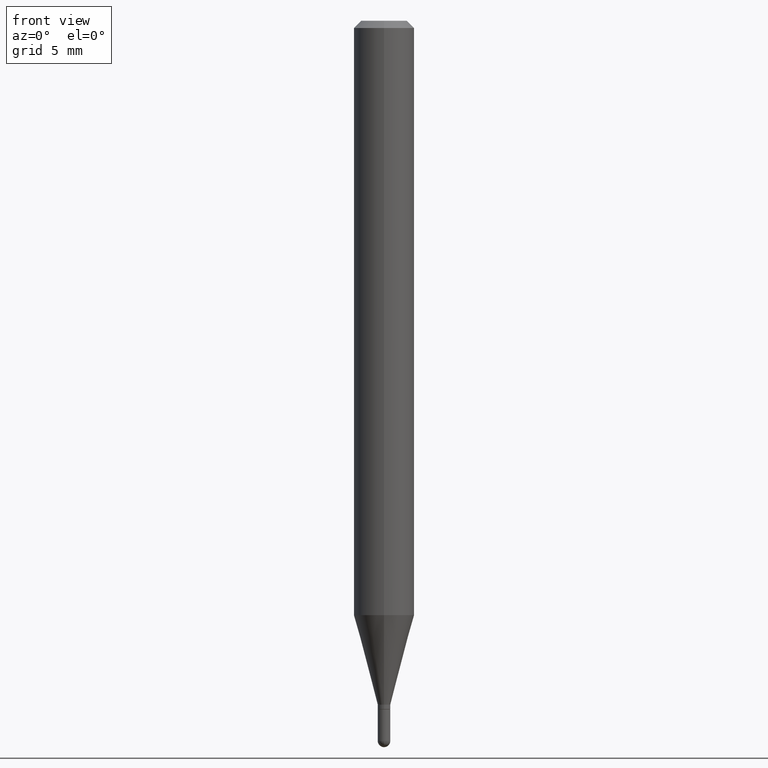
[diagram: clean part render]
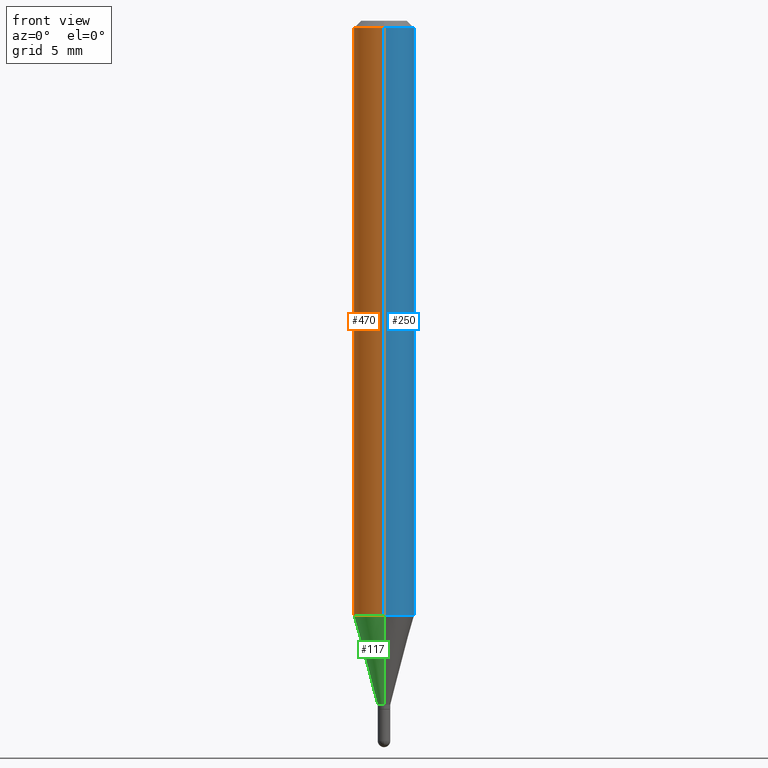
[diagram: same view with three faces highlighted in distinct colors, each labeled with its STEP entity id]
A machine part, front view with three faces highlighted in distinct colors.
Their STEP definitions:

[orange] entity #470 — the highlighted cylindrical surface (edge-blend (fillet) strip) has radius 1.5875 mm, axis along (-0, 0, 1).
#3 = AXIS2_PLACEMENT_3D ( 'NONE', #65, #495, #218 ) ;
#17 = VECTOR ( 'NONE', #256, 39.37007874015748143 ) ;
#22 = EDGE_CURVE ( 'NONE', #261, #393, #494, .T. ) ;
#30 = ORIENTED_EDGE ( 'NONE', *, *, #127, .T. ) ;
#37 = VERTEX_POINT ( 'NONE', #298 ) ;
#41 = ORIENTED_EDGE ( 'NONE', *, *, #485, .T. ) ;
#65 = CARTESIAN_POINT ( 'NONE',  ( 3.668212137666738049E-31, -5.237209222303456636E-17, -0.01500000000000000812 ) ) ;
#68 = CARTESIAN_POINT ( 'NONE',  ( 4.440892098500928887E-16, 0.06249999999999995837, -0.01500000000000022669 ) ) ;
#74 = DIRECTION ( 'NONE',  ( -6.982962677686265922E-15, -1.000000000000000000, 3.491472814868968428E-15 ) ) ;
#114 = ORIENTED_EDGE ( 'NONE', *, *, #22, .F. ) ;
#127 = EDGE_CURVE ( 'NONE', #261, #319, #409, .T. ) ;
#139 = CARTESIAN_POINT ( 'NONE',  ( 4.440892098500625669E-16, 0.06250000000000000000, -2.182170509293105267E-16 ) ) ;
#166 = VECTOR ( 'NONE', #277, 39.37007874015748143 ) ;
#182 = FACE_OUTER_BOUND ( 'NONE', #468, .T. ) ;
#218 = DIRECTION ( 'NONE',  ( -6.982962677686265922E-15, -1.000000000000000000, 3.483106191921935554E-15 ) ) ;
#223 = CIRCLE ( 'NONE', #3, 0.06250000000000000000 ) ;
#230 = CARTESIAN_POINT ( 'NONE',  ( -4.364351673553916201E-16, -0.06250000000000000000, 2.182170509293105267E-16 ) ) ;
#256 = DIRECTION ( 'NONE',  ( -2.445474758444491028E-29, 3.491472814868968822E-15, 1.000000000000000000 ) ) ;
#261 = VERTEX_POINT ( 'NONE', #374 ) ;
#277 = DIRECTION ( 'NONE',  ( -2.445474758444491028E-29, 3.491472814868968822E-15, 1.000000000000000000 ) ) ;
#298 = CARTESIAN_POINT ( 'NONE',  ( -4.364351673553912750E-16, -0.06250000000000005551, -0.01499999999999979128 ) ) ;
#319 = VERTEX_POINT ( 'NONE', #333 ) ;
#333 = CARTESIAN_POINT ( 'NONE',  ( -4.364351673553616434E-16, -0.06250000000000428824, -1.227263485025340772 ) ) ;
#345 = DIRECTION ( 'NONE',  ( -2.445474758444490748E-29, 3.491472814868968822E-15, 1.000000000000000000 ) ) ;
#362 = ORIENTED_EDGE ( 'NONE', *, *, #504, .F. ) ;
#364 = CARTESIAN_POINT ( 'NONE',  ( 3.001241874590089611E-29, -4.284957094647328536E-15, -1.227263485025340994 ) ) ;
#374 = CARTESIAN_POINT ( 'NONE',  ( 4.440892098500924943E-16, 0.06249999999999571176, -1.227263485025341216 ) ) ;
#388 = AXIS2_PLACEMENT_3D ( 'NONE', #389, #345, #74 ) ;
#389 = CARTESIAN_POINT ( 'NONE',  ( 0.000000000000000000, 0.000000000000000000, 0.000000000000000000 ) ) ;
#393 = VERTEX_POINT ( 'NONE', #68 ) ;
#396 = DIRECTION ( 'NONE',  ( -6.982962677686265922E-15, -1.000000000000000000, 4.370956789862821150E-15 ) ) ;
#409 = CIRCLE ( 'NONE', #466, 0.06250000000000000000 ) ;
#435 = CYLINDRICAL_SURFACE ( 'NONE', #388, 0.06250000000000000000 ) ;
#466 = AXIS2_PLACEMENT_3D ( 'NONE', #364, #472, #396 ) ;
#468 = EDGE_LOOP ( 'NONE', ( #114, #30, #41, #362 ) ) ;
#470 = ADVANCED_FACE ( 'NONE', ( #182 ), #435, .T. ) ;
#472 = DIRECTION ( 'NONE',  ( -2.445474758444490748E-29, 3.491472814868968822E-15, 1.000000000000000000 ) ) ;
#485 = EDGE_CURVE ( 'NONE', #319, #37, #497, .T. ) ;
#494 = LINE ( 'NONE', #139, #17 ) ;
#495 = DIRECTION ( 'NONE',  ( -2.445474758444490748E-29, 3.491472814868968822E-15, 1.000000000000000000 ) ) ;
#497 = LINE ( 'NONE', #230, #166 ) ;
#504 = EDGE_CURVE ( 'NONE', #393, #37, #223, .T. ) ;

[blue] entity #250 — the highlighted cylindrical surface (edge-blend (fillet) strip) has radius 1.5875 mm, axis along (-0, 0, 1).
#6 = EDGE_CURVE ( 'NONE', #319, #261, #415, .T. ) ;
#12 = CARTESIAN_POINT ( 'NONE',  ( 3.001241874590089611E-29, -4.284957094647328536E-15, -1.227263485025340994 ) ) ;
#17 = VECTOR ( 'NONE', #256, 39.37007874015748143 ) ;
#22 = EDGE_CURVE ( 'NONE', #261, #393, #494, .T. ) ;
#29 = CARTESIAN_POINT ( 'NONE',  ( 3.668212137666738049E-31, -5.237209222303456636E-17, -0.01500000000000000812 ) ) ;
#37 = VERTEX_POINT ( 'NONE', #298 ) ;
#43 = ORIENTED_EDGE ( 'NONE', *, *, #6, .T. ) ;
#68 = CARTESIAN_POINT ( 'NONE',  ( 4.440892098500928887E-16, 0.06249999999999995837, -0.01500000000000022669 ) ) ;
#76 = ORIENTED_EDGE ( 'NONE', *, *, #485, .F. ) ;
#80 = ORIENTED_EDGE ( 'NONE', *, *, #140, .F. ) ;
#134 = CARTESIAN_POINT ( 'NONE',  ( 0.000000000000000000, 0.000000000000000000, 0.000000000000000000 ) ) ;
#139 = CARTESIAN_POINT ( 'NONE',  ( 4.440892098500625669E-16, 0.06250000000000000000, -2.182170509293105267E-16 ) ) ;
#140 = EDGE_CURVE ( 'NONE', #37, #393, #450, .T. ) ;
#166 = VECTOR ( 'NONE', #277, 39.37007874015748143 ) ;
#173 = DIRECTION ( 'NONE',  ( -2.445474758444490748E-29, 3.491472814868968822E-15, 1.000000000000000000 ) ) ;
#176 = DIRECTION ( 'NONE',  ( -6.982962677686265922E-15, -1.000000000000000000, 4.370956789862821150E-15 ) ) ;
#192 = AXIS2_PLACEMENT_3D ( 'NONE', #12, #454, #176 ) ;
#212 = CYLINDRICAL_SURFACE ( 'NONE', #442, 0.06250000000000000000 ) ;
#230 = CARTESIAN_POINT ( 'NONE',  ( -4.364351673553916201E-16, -0.06250000000000000000, 2.182170509293105267E-16 ) ) ;
#250 = ADVANCED_FACE ( 'NONE', ( #418 ), #212, .T. ) ;
#256 = DIRECTION ( 'NONE',  ( -2.445474758444491028E-29, 3.491472814868968822E-15, 1.000000000000000000 ) ) ;
#261 = VERTEX_POINT ( 'NONE', #374 ) ;
#277 = DIRECTION ( 'NONE',  ( -2.445474758444491028E-29, 3.491472814868968822E-15, 1.000000000000000000 ) ) ;
#291 = AXIS2_PLACEMENT_3D ( 'NONE', #29, #436, #500 ) ;
#298 = CARTESIAN_POINT ( 'NONE',  ( -4.364351673553912750E-16, -0.06250000000000005551, -0.01499999999999979128 ) ) ;
#319 = VERTEX_POINT ( 'NONE', #333 ) ;
#332 = DIRECTION ( 'NONE',  ( -6.982962677686265922E-15, -1.000000000000000000, 3.491472814868968428E-15 ) ) ;
#333 = CARTESIAN_POINT ( 'NONE',  ( -4.364351673553616434E-16, -0.06250000000000428824, -1.227263485025340772 ) ) ;
#374 = CARTESIAN_POINT ( 'NONE',  ( 4.440892098500924943E-16, 0.06249999999999571176, -1.227263485025341216 ) ) ;
#393 = VERTEX_POINT ( 'NONE', #68 ) ;
#408 = ORIENTED_EDGE ( 'NONE', *, *, #22, .T. ) ;
#415 = CIRCLE ( 'NONE', #192, 0.06250000000000000000 ) ;
#418 = FACE_OUTER_BOUND ( 'NONE', #438, .T. ) ;
#436 = DIRECTION ( 'NONE',  ( -2.445474758444490748E-29, 3.491472814868968822E-15, 1.000000000000000000 ) ) ;
#438 = EDGE_LOOP ( 'NONE', ( #43, #408, #80, #76 ) ) ;
#442 = AXIS2_PLACEMENT_3D ( 'NONE', #134, #173, #332 ) ;
#450 = CIRCLE ( 'NONE', #291, 0.06250000000000000000 ) ;
#454 = DIRECTION ( 'NONE',  ( -2.445474758444490748E-29, 3.491472814868968822E-15, 1.000000000000000000 ) ) ;
#485 = EDGE_CURVE ( 'NONE', #319, #37, #497, .T. ) ;
#494 = LINE ( 'NONE', #139, #17 ) ;
#497 = LINE ( 'NONE', #230, #166 ) ;
#500 = DIRECTION ( 'NONE',  ( -6.982962677686265922E-15, -1.000000000000000000, 3.483106191921935554E-15 ) ) ;

[green] entity #117 — the highlighted conical surface has half-angle 15 deg.
#28 = DIRECTION ( 'NONE',  ( -1.807323732225330139E-15, -0.2588190451025181860, 0.9659258262890689783 ) ) ;
#33 = ORIENTED_EDGE ( 'NONE', *, *, #501, .T. ) ;
#38 = CIRCLE ( 'NONE', #251, 0.01299999999999992134 ) ;
#46 = CONICAL_SURFACE ( 'NONE', #336, 0.01299999999999992134, 0.2617993877991502960 ) ;
#49 = EDGE_CURVE ( 'NONE', #85, #404, #38, .T. ) ;
#75 = DIRECTION ( 'NONE',  ( -2.445474758444490748E-29, 3.491472814868968822E-15, 1.000000000000000000 ) ) ;
#84 = DIRECTION ( 'NONE',  ( -6.982962677686266711E-15, -1.000000000000000000, 0.000000000000000000 ) ) ;
#85 = VERTEX_POINT ( 'NONE', #98 ) ;
#98 = CARTESIAN_POINT ( 'NONE',  ( 2.682298827494699087E-16, 0.01299999999999499126, -1.412000000000000144 ) ) ;
#117 = ADVANCED_FACE ( 'NONE', ( #402 ), #46, .T. ) ;
#118 = ORIENTED_EDGE ( 'NONE', *, *, #127, .F. ) ;
#127 = EDGE_CURVE ( 'NONE', #261, #319, #409, .T. ) ;
#151 = CARTESIAN_POINT ( 'NONE',  ( 3.453010358923621239E-29, -4.929959614594984823E-15, -1.412000000000000144 ) ) ;
#161 = EDGE_LOOP ( 'NONE', ( #427, #433, #33, #118 ) ) ;
#181 = DIRECTION ( 'NONE',  ( -2.445474758444490748E-29, 3.491472814868968822E-15, 1.000000000000000000 ) ) ;
#187 = CARTESIAN_POINT ( 'NONE',  ( -9.077851480988638462E-17, -0.01300000000000485142, -1.412000000000000144 ) ) ;
#190 = CARTESIAN_POINT ( 'NONE',  ( -9.077851480988638462E-17, -0.01300000000000485142, -1.412000000000000144 ) ) ;
#193 = VECTOR ( 'NONE', #350, 39.37007874015748143 ) ;
#251 = AXIS2_PLACEMENT_3D ( 'NONE', #334, #181, #488 ) ;
#261 = VERTEX_POINT ( 'NONE', #374 ) ;
#319 = VERTEX_POINT ( 'NONE', #333 ) ;
#326 = EDGE_CURVE ( 'NONE', #85, #261, #347, .T. ) ;
#333 = CARTESIAN_POINT ( 'NONE',  ( -4.364351673553616434E-16, -0.06250000000000428824, -1.227263485025340772 ) ) ;
#334 = CARTESIAN_POINT ( 'NONE',  ( 3.453010358923621239E-29, -4.929959614594984823E-15, -1.412000000000000144 ) ) ;
#336 = AXIS2_PLACEMENT_3D ( 'NONE', #151, #75, #84 ) ;
#347 = LINE ( 'NONE', #354, #193 ) ;
#350 = DIRECTION ( 'NONE',  ( 1.839019923739600315E-15, 0.2588190451025249583, 0.9659258262890670910 ) ) ;
#354 = CARTESIAN_POINT ( 'NONE',  ( 9.237055564884697792E-17, 0.01299999999999499126, -1.412000000000000144 ) ) ;
#364 = CARTESIAN_POINT ( 'NONE',  ( 3.001241874590089611E-29, -4.284957094647328536E-15, -1.227263485025340994 ) ) ;
#374 = CARTESIAN_POINT ( 'NONE',  ( 4.440892098500924943E-16, 0.06249999999999571176, -1.227263485025341216 ) ) ;
#396 = DIRECTION ( 'NONE',  ( -6.982962677686265922E-15, -1.000000000000000000, 4.370956789862821150E-15 ) ) ;
#402 = FACE_OUTER_BOUND ( 'NONE', #161, .T. ) ;
#404 = VERTEX_POINT ( 'NONE', #187 ) ;
#409 = CIRCLE ( 'NONE', #466, 0.06250000000000000000 ) ;
#427 = ORIENTED_EDGE ( 'NONE', *, *, #326, .F. ) ;
#433 = ORIENTED_EDGE ( 'NONE', *, *, #49, .T. ) ;
#455 = VECTOR ( 'NONE', #28, 39.37007874015748143 ) ;
#462 = LINE ( 'NONE', #190, #455 ) ;
#466 = AXIS2_PLACEMENT_3D ( 'NONE', #364, #472, #396 ) ;
#472 = DIRECTION ( 'NONE',  ( -2.445474758444490748E-29, 3.491472814868968822E-15, 1.000000000000000000 ) ) ;
#488 = DIRECTION ( 'NONE',  ( -6.982962677686266711E-15, -1.000000000000000000, 0.000000000000000000 ) ) ;
#501 = EDGE_CURVE ( 'NONE', #404, #319, #462, .T. ) ;